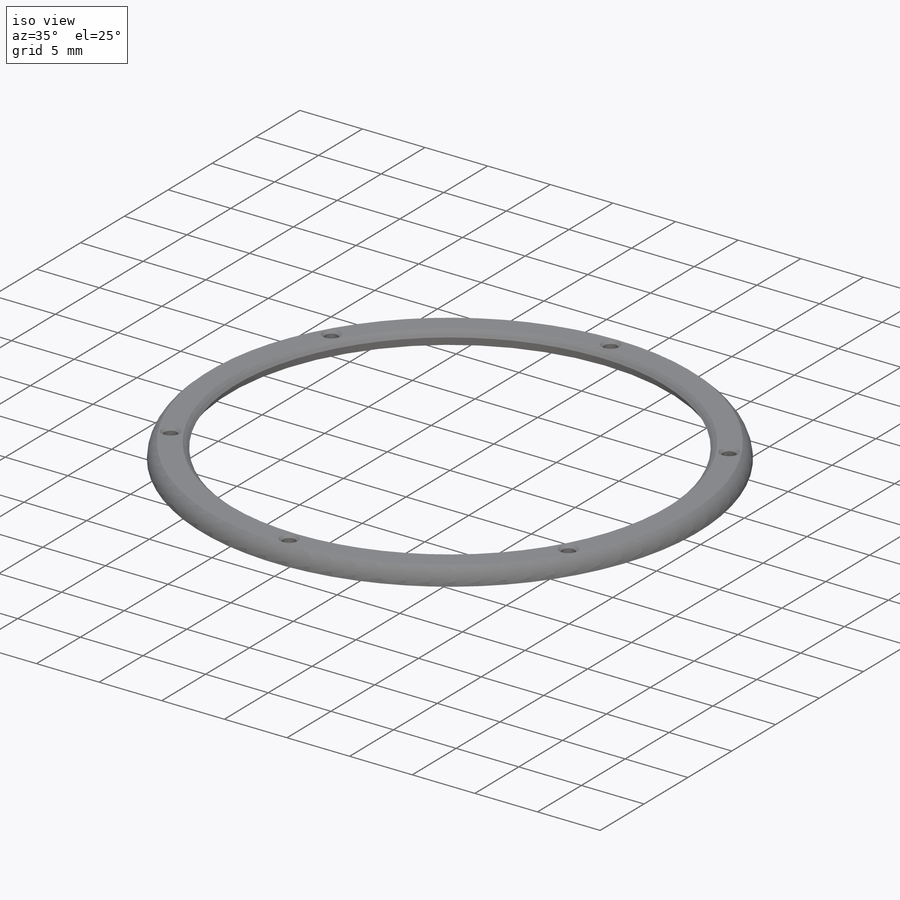
[diagram: iso view]
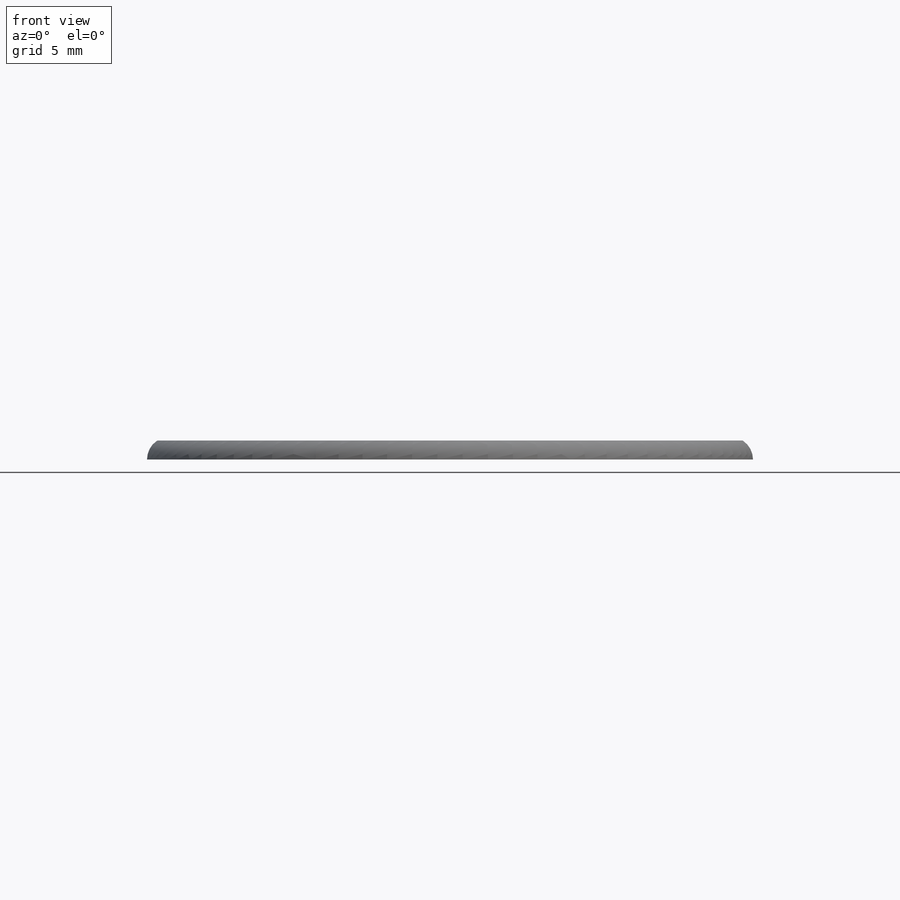
[diagram: front view]
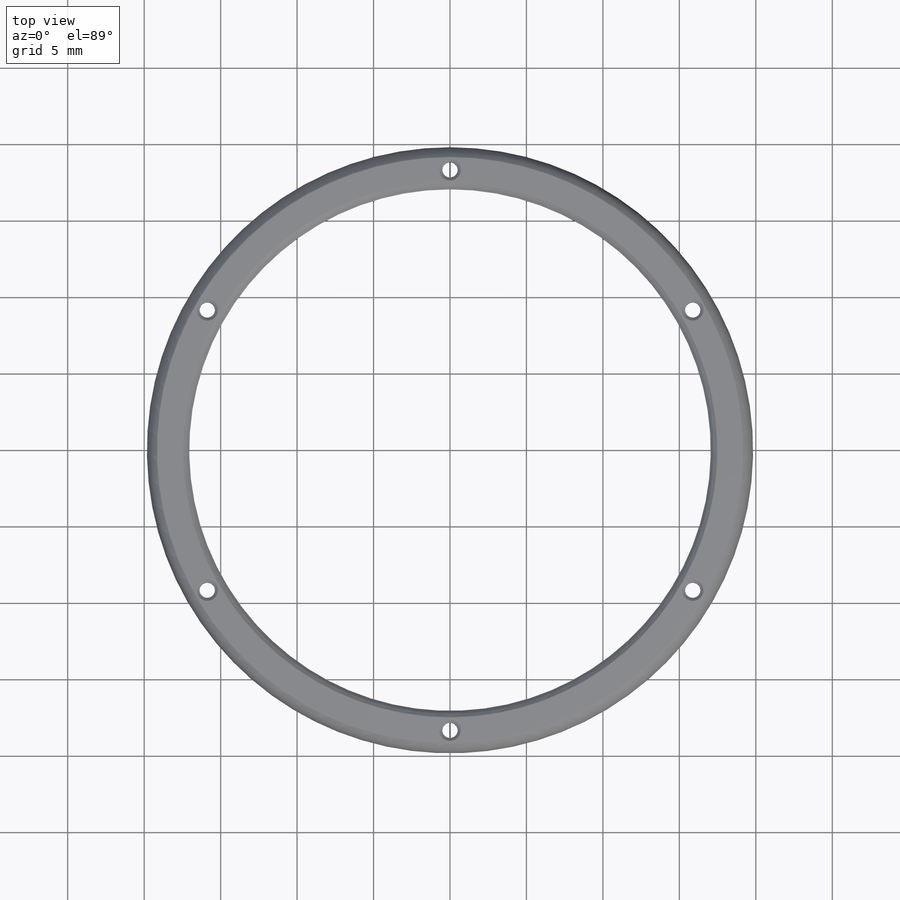
[diagram: top view]
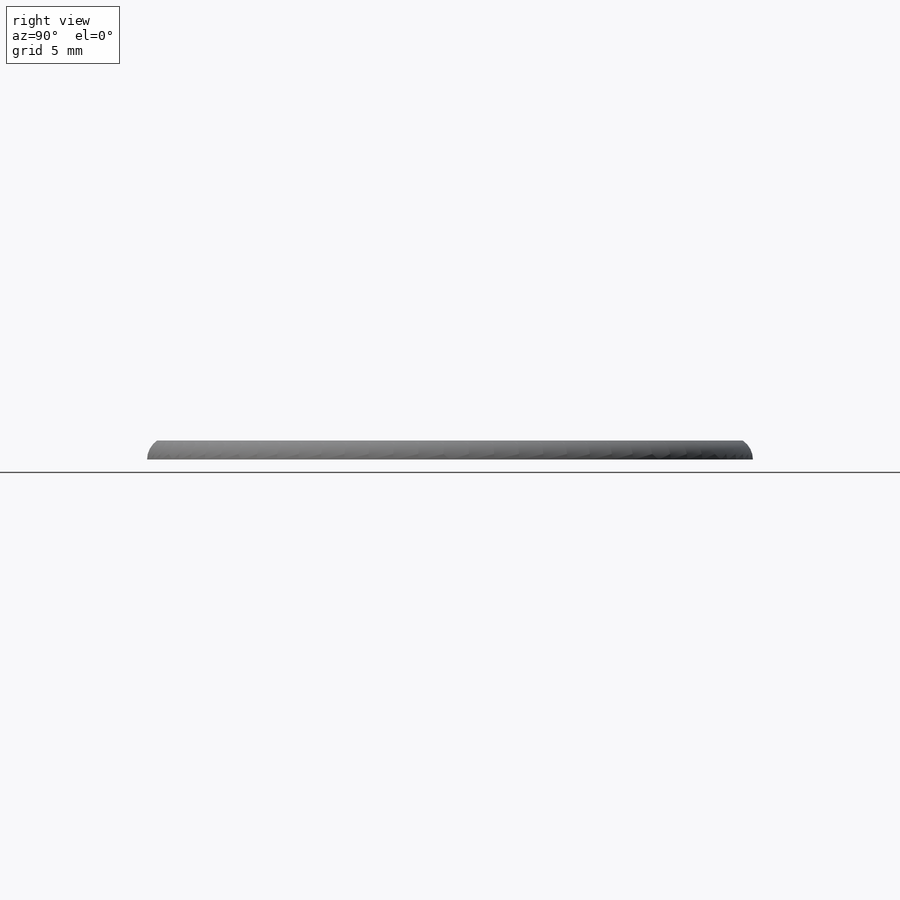
[diagram: right view]
SOLIDWORKS PART (.sldprt)
format: sldprt  version: not decoded by parser v0  size: 231,424 bytes
history: native  units: mm
features: sketch x5, plane x3, material x1, revolve x1, cut_extrude x1, chamfer x1, pattern_circular x1, fillet x1 (+10 scaffold rows collapsed)
feature tree (24):
  scaffold x10  (default folders/planes/origin — collapsed)
  material  "Matériau <non spécifié>"
  plane  "Plan de face"
  plane  "Plan de dessus"
  plane  "Plan de droite"
  sketch  "Esquisse1"  dims[c1.D2=1.5mm c1.D3=~1.256224mm c1.D1=18.32mm c2.D2=0.8mm c2.D3=16.82mm c2.D4=0.8mm c3.D3=17.62mm c3.D5=0.45mm]
  revolve  "Révolution1"  Angle=360deg
  sketch  "Esquisse2"  dims[D1=36.64mm]
  sketch  "Esquisse4"
  sketch  "Esquisse3"  dims[D1=1.0mm D2=18.33mm]
  cut_extrude  "Enlèv. mat.-Extru.1"  [1 undecoded]
  chamfer  "Chanfrein1"  Distance=0.2mm Angle=45deg
  pattern_circular  "Répétition circulaire1"  Count=6 Angle=360deg
  sketch  "Esquisse5"  dims[D1=1.35mm]
  fillet  "Congé1"  Radius=0.1mm
decode coverage: 8 of 10 modeling features carry decoded parameters
note: ~ marks probable driven/reference dimensions
note: 1 parameter value undecoded
note: suppression state not decoded; provenance and decode notes live in map.json
